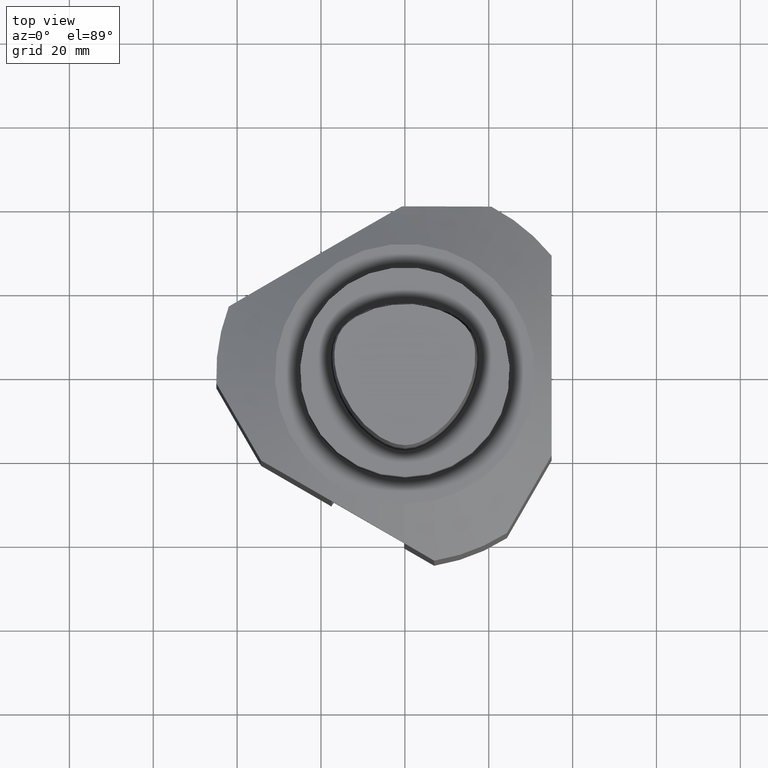
[diagram: clean part render]
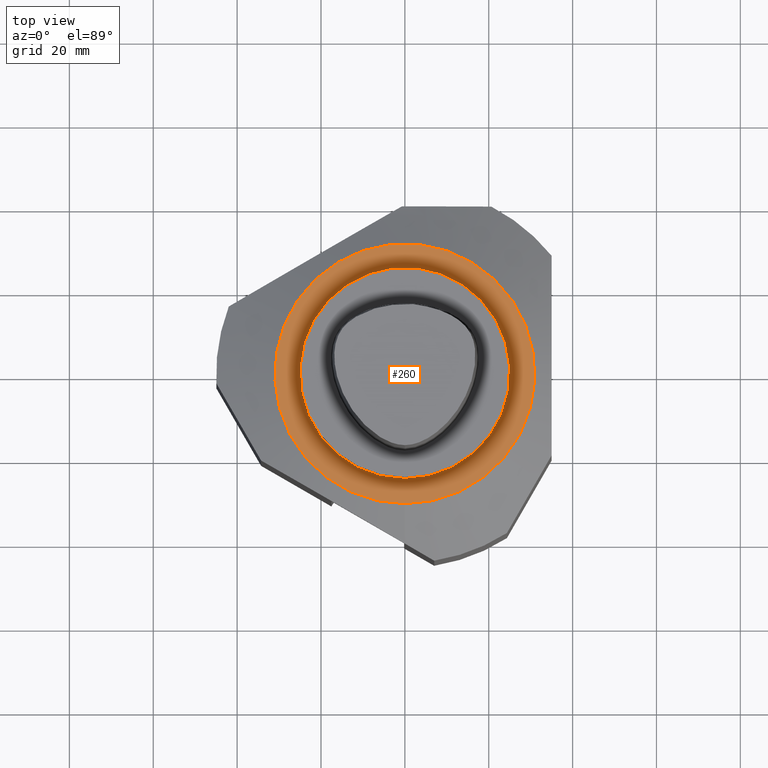
[diagram: same view with one face highlighted and labeled with its STEP entity id]
A machine part, top view. The second image highlights one B-rep face of the part: STEP entity #260.
In plain terms, the highlighted planar face has unit normal (-0, -0, -1).
Its self-contained STEP definition (entity closure, byte-faithful):
#166=EDGE_CURVE('240[2]',#435,#435,#436,.T.);
#260=ADVANCED_FACE('240[2]',(#563,#564),#565,.F.);
#302=EDGE_CURVE('240[2]',#614,#614,#615,.T.);
#435=VERTEX_POINT('',#811);
#436=CIRCLE('',#812,24.9898891324553);
#563=FACE_OUTER_BOUND('',#1181,.T.);
#564=FACE_BOUND('',#1182,.T.);
#565=PLANE('',#1183);
#614=VERTEX_POINT('',#1270);
#615=CIRCLE('',#1271,30.9999999591079);
#811=CARTESIAN_POINT('',(4.40749015423018E-015,-24.9898891324553,-21.9999983906745));
#812=AXIS2_PLACEMENT_3D('',#1767,#1768,#1769);
#1181=EDGE_LOOP('',(#1912));
#1182=EDGE_LOOP('',(#1913));
#1183=AXIS2_PLACEMENT_3D('',#1914,#1915,#1916);
#1270=CARTESIAN_POINT('',(5.14351645286827E-015,-30.9999999591079,-21.9999983906745));
#1271=AXIS2_PLACEMENT_3D('',#1980,#1981,#1982);
#1767=CARTESIAN_POINT('',(1.34711138051932E-015,0.0,-21.9999983906745));
#1768=DIRECTION('',(0.0,0.0,1.0));
#1769=DIRECTION('',(0.0,-1.0,0.0));
#1912=ORIENTED_EDGE('',*,*,#302,.T.);
#1913=ORIENTED_EDGE('',*,*,#166,.F.);
#1914=CARTESIAN_POINT('',(4.77550330354922E-015,-27.9949445457816,-21.9999983906745));
#1915=DIRECTION('',(-0.0,-0.0,-1.0));
#1916=DIRECTION('',(0.0,-1.0,0.0));
#1980=CARTESIAN_POINT('',(1.34711138051932E-015,0.0,-21.9999983906745));
#1981=DIRECTION('',(0.0,0.0,1.0));
#1982=DIRECTION('',(0.0,-1.0,0.0));